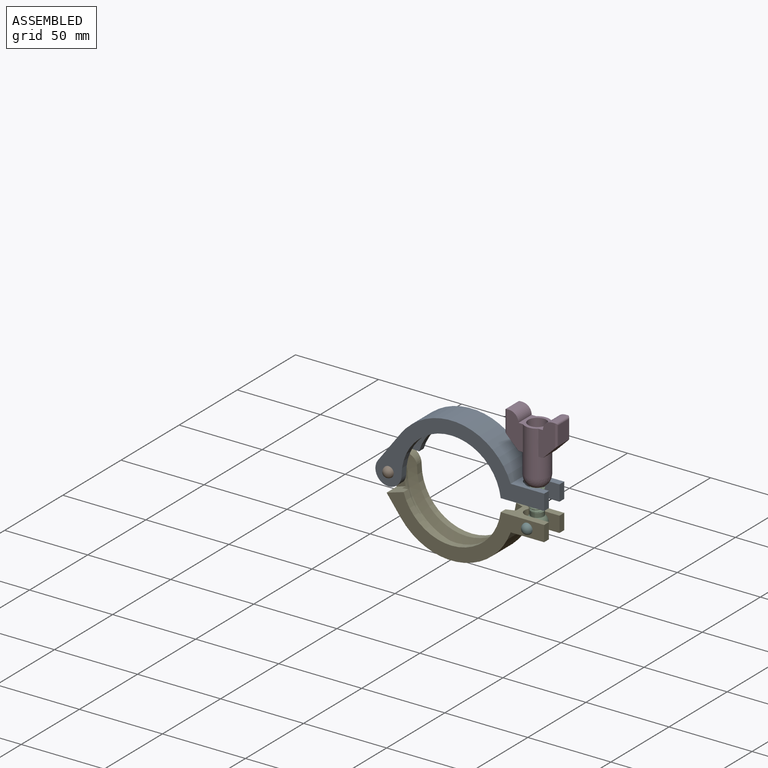
[diagram: assembled view]
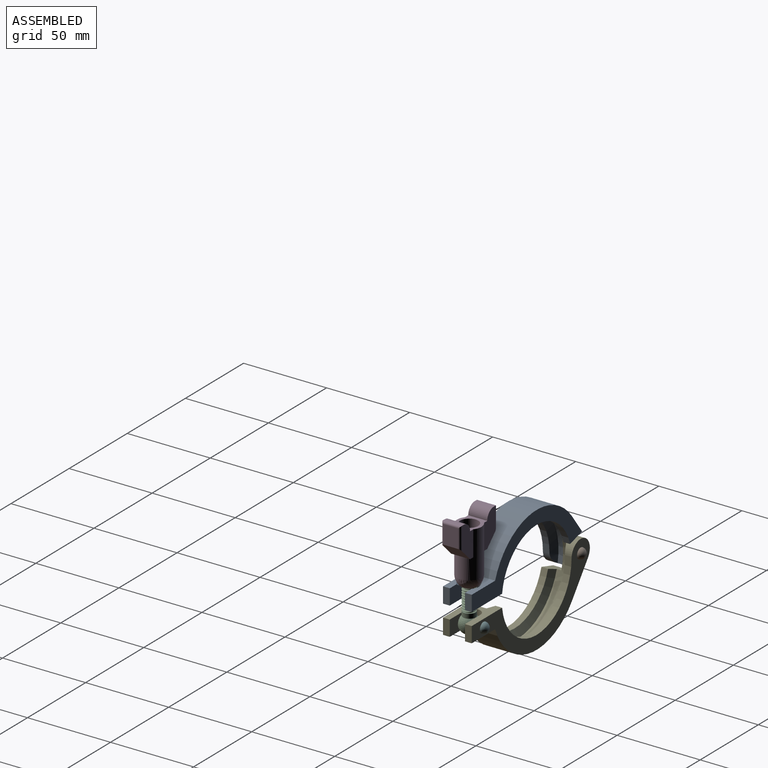
[diagram: assembled view, second angle]
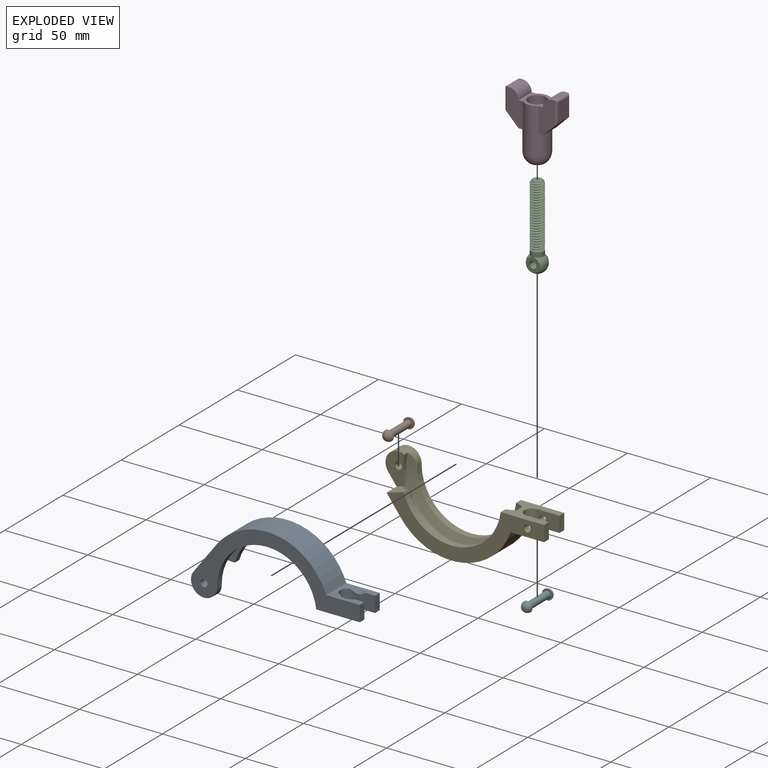
[diagram: exploded view]
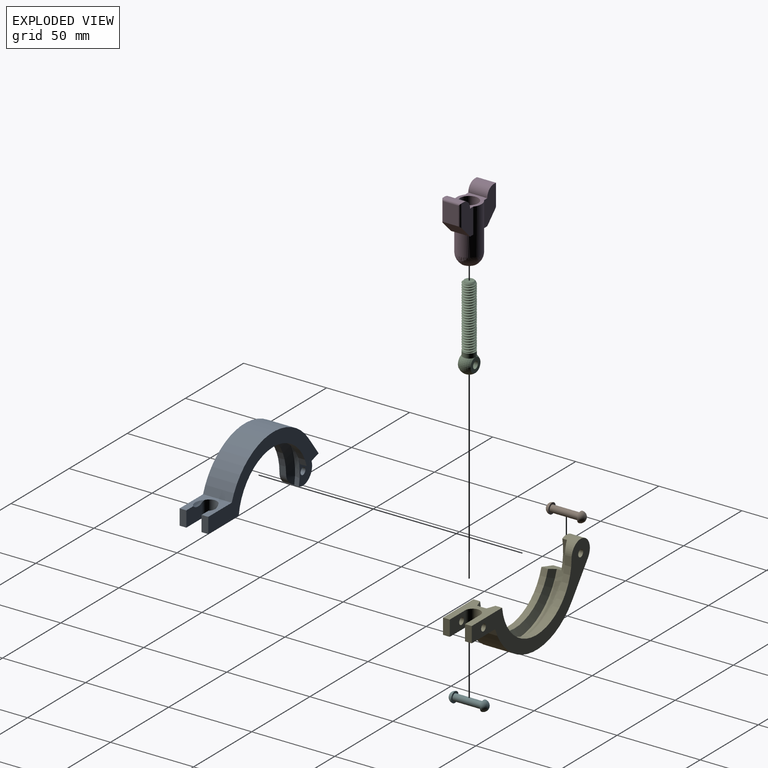
[diagram: exploded view, second angle]
ASSEMBLY  parts=6 mates=5
PART A: 22 faces, bbox 101.6x17.3x46 mm
  f0: cylinder r=2.1mm len=8.64mm, axis (0,1,0), area 113.7mm2, adj f10,f18
  f1: cylinder r=35.06mm len=69.91mm, axis (0,-1,0), area 585.7mm2, adj f3,f6,f9,f11,f18,f19
  f2: plane 94.86x34.29mm, normal (0,1,0), area 947mm2, adj f4,f5,f8,f11,f16,f17,f19
  f3: cone r=29.97mm half-angle=70deg, axis (0,-1,0), area 481.4mm2, adj f1,f4,f11,f19
  f4: cylinder r=29.97mm len=58.46mm, axis (0,-1,0), area 326mm2, adj f2,f3,f11,f19
  f5: plane 18.19x17.27mm, normal (-0.8,0,0.6), area 319.5mm2, adj f2,f6,f8,f10,f18,f19
  f6: cylinder r=7.87mm len=15.75mm, axis (0,1,0), area 225mm2, adj f1,f5,f7,f9,f10,f18
  f7: cylinder r=29.97mm len=59.7mm, axis (0,-1,0), area 360.5mm2, adj f6,f9,f10,f11
  f8: cylinder r=38.1mm len=66.17mm, axis (0,-1,0), area 1409.5mm2, adj f2,f5,f10,f17
  f9: cone r=35.06mm half-angle=70deg, axis (0,1,0), area 559.2mm2, adj f1,f6,f7,f11
  f10: plane 101.6x45.97mm, normal (0,-1,0), area 1173.7mm2, adj f0,f5,f6,f7,f8,f11,f12,f17
  f11: plane 26.2x17.32mm, normal (0,0,-1), area 260mm2, adj f1,f2,f3,f4,f7,f9,f10,f12
  f12: plane 9.4x4.06mm, normal (1,0,0), area 38.2mm2, adj f10,f11,f13,f17
  f13: plane 13.21x9.4mm, normal (0,1,0), area 114.4mm2, adj f11,f12,f14,f17,f21
  f14: cylinder r=4.57mm len=9.4mm, axis (0,0,-1), area 133.3mm2, adj f11,f13,f15,f17,f20,f21
  f15: plane 13.21x9.4mm, normal (0,-1,0), area 114.4mm2, adj f11,f14,f16,f17,f20
  f16: plane 9.4x4.06mm, normal (1,0,0), area 38.2mm2, adj f2,f11,f15,f17
  f17: plane 20.14x17.27mm, normal (0,0,1), area 172.5mm2, adj f2,f8,f10,f12,f13,f14,f15,f16
  f18: plane 19.45x12.11mm, normal (0,1,0), area 153.5mm2, adj f0,f1,f5,f6,f19
  f19: plane 10.25x8.64mm, normal (-0.28,0,-0.96), area 73.4mm2, adj f1,f2,f3,f4,f5,f18
  f20: sphere r=7.94mm, area 15.9mm2, adj f14,f15,f17
  f21: sphere r=7.94mm, area 15.9mm2, adj f13,f14,f17
PART B: 5 faces, bbox 6.4x23.4x6.4 mm
  f0: sphere r=3.18mm, area 60.9mm2, adj f4
  f1: cylinder r=2.03mm len=17.27mm, axis (0,1,0), area 220.5mm2, adj f3,f4
  f2: sphere r=3.18mm, area 60.9mm2, adj f3
  f3: plane 6.35x6.35mm, normal (0,-1,0), area 18.7mm2, adj f1,f2
  f4: plane 6.35x6.35mm, normal (0,1,0), area 18.7mm2, adj f0,f1
PART C: 39 faces, bbox 12x8.3x51.7 mm
  f0: cone r=2.74mm half-angle=45deg, axis (0,0,-1), area 16.9mm2, adj f1,f30,f35,f36,f37,f38
  f1: cone r=2.74mm half-angle=45deg, axis (0,0,-1), area 0mm2, adj f0,f29,f37
  f2: cylinder r=2.1mm len=7.62mm, axis (0,-1,0), area 100.3mm2, adj f33,f34
  f3: cylinder r=3.81mm len=7.62mm, axis (0,0,1), area 66mm2, adj f4,f31,f32,f35,f37
  f4: cylinder r=3.81mm len=7.62mm, axis (0,0,1), area 4.2mm2, adj f3,f5,f35,f37
  f5: cylinder r=3.81mm len=7.62mm, axis (0,0,1), area 4.2mm2, adj f4,f6,f35,f37
  f6: cylinder r=3.81mm len=7.62mm, axis (0,0,1), area 4.2mm2, adj f5,f7,f35,f37
  f7: cylinder r=3.81mm len=7.62mm, axis (0,0,1), area 4.2mm2, adj f6,f8,f35,f37
  f8: cylinder r=3.81mm len=7.62mm, axis (0,0,1), area 4.2mm2, adj f7,f9,f35,f37
  f9: cylinder r=3.81mm len=7.62mm, axis (0,0,1), area 4.2mm2, adj f8,f10,f35,f37
  f10: cylinder r=3.81mm len=7.62mm, axis (0,0,1), area 4.2mm2, adj f9,f11,f35,f37
  f11: cylinder r=3.81mm len=7.62mm, axis (0,0,1), area 4.2mm2, adj f10,f12,f35,f37
  f12: cylinder r=3.81mm len=7.62mm, axis (0,0,1), area 4.2mm2, adj f11,f13,f35,f37
  f13: cylinder r=3.81mm len=7.62mm, axis (0,0,1), area 4.2mm2, adj f12,f14,f35,f37
  f14: cylinder r=3.81mm len=7.62mm, axis (0,0,1), area 4.2mm2, adj f13,f15,f35,f37
  f15: cylinder r=3.81mm len=7.62mm, axis (0,0,1), area 4.2mm2, adj f14,f16,f35,f37
  f16: cylinder r=3.81mm len=7.62mm, axis (0,0,1), area 4.2mm2, adj f15,f17,f35,f37
  f17: cylinder r=3.81mm len=7.62mm, axis (0,0,1), area 4.2mm2, adj f16,f18,f35,f37
  f18: cylinder r=3.81mm len=7.62mm, axis (0,0,1), area 4.2mm2, adj f17,f19,f35,f37
  f19: cylinder r=3.81mm len=7.62mm, axis (0,0,1), area 4.2mm2, adj f18,f20,f35,f37
  f20: cylinder r=3.81mm len=7.62mm, axis (0,0,1), area 4.2mm2, adj f19,f21,f35,f37
  f21: cylinder r=3.81mm len=7.62mm, axis (0,0,1), area 4.2mm2, adj f20,f22,f35,f37
  f22: cylinder r=3.81mm len=7.62mm, axis (0,0,1), area 4.2mm2, adj f21,f23,f35,f37
  f23: cylinder r=3.81mm len=7.62mm, axis (0,0,1), area 4.2mm2, adj f22,f24,f35,f37
  f24: cylinder r=3.81mm len=7.62mm, axis (0,0,1), area 4.2mm2, adj f23,f25,f35,f37
  f25: cylinder r=3.81mm len=7.62mm, axis (0,0,1), area 4.2mm2, adj f24,f26,f35,f37
  f26: cylinder r=3.81mm len=7.62mm, axis (0,0,1), area 4.2mm2, adj f25,f27,f35,f37
  f27: cylinder r=3.81mm len=7.62mm, axis (0,0,1), area 4.2mm2, adj f26,f28,f35,f37
  f28: cylinder r=3.81mm len=7.62mm, axis (0,0,1), area 4.2mm2, adj f27,f29,f35,f37
  f29: cylinder r=3.81mm len=7.62mm, axis (0,0,1), area 4.2mm2, adj f1,f28,f30,f35,f37
  f30: cylinder r=3.81mm len=2.55mm, axis (0,0,1), area 0.2mm2, adj f0,f29,f35
  f31: sphere r=5.71mm, area 221.4mm2, adj f3,f33,f34
  f32: plane 8.17x8.17mm, normal (0,0,1), area 10mm2, adj f3,f35,f36,f37
  f33: plane 8.52x8.52mm, normal (0,-1,0), area 43.2mm2, adj f2,f31
  f34: plane 8.52x8.52mm, normal (0,1,0), area 43.2mm2, adj f2,f31
  f35: bspline ~39.01x7.59mm, area 595.1mm2, adj f0,f3,f4,f5,f6,f7,f8,f9
  f36: cylinder r=2.89mm len=37.95mm, axis (0,0,1), area 85.5mm2, adj f0,f32,f35,f37
  f37: bspline ~38.67x7.77mm, area 618.5mm2, adj f0,f1,f3,f4,f5,f6,f7,f8
  f38: plane 5.48x5.48mm, normal (0,0,1), area 23.6mm2, adj f0
PART D: 29 faces, bbox 31.5x14.7x40.6 mm
  f0: cylinder r=7.37mm len=27.65mm, axis (0,0,-1), area 881.1mm2, adj f3,f4,f8,f11,f12,f15,f16,f17
  f1: cylinder r=5.46mm len=19.05mm, axis (0,0,-1), area 653.7mm2, adj f10,f11
  f2: cylinder r=3.81mm len=14.48mm, axis (0,0,-1), area 346.6mm2, adj f9,f10
  f3: sphere r=7.37mm, area 271.8mm2, adj f0,f9
  f4: plane 5.72x2.72mm, normal (0,0,-1), area 4.7mm2, adj f0,f17,f28
  f5: plane 11.43x1.52mm, normal (0,0,1), area 17.4mm2, adj f17,f21,f26,f27
  f6: plane 11.43x1.52mm, normal (0,0,1), area 17.4mm2, adj f12,f15,f24,f25
  f7: plane 11.18x8.89mm, normal (-1,0,0), area 99.4mm2, adj f13,f14,f23,f24
  f8: plane 5.72x2.72mm, normal (0,0,-1), area 4.7mm2, adj f0,f12,f23
  f9: plane 8.89x8.89mm, normal (0,0,-1), area 16.5mm2, adj f2,f3
  f10: plane 10.92x10.92mm, normal (0,0,1), area 48.1mm2, adj f1,f2
  f11: plane 14.73x14.73mm, normal (0,0,1), area 95.7mm2, adj f0,f1,f12,f15,f17,f21,f25,f27
  f12: plane 20.83x9.83mm, normal (0,-1,0), area 157.6mm2, adj f0,f6,f8,f11,f13,f23,f25
  f13: cylinder r=1.27mm len=13.72mm, axis (0,0,1), area 24.8mm2, adj f7,f12,f23,f24
  f14: cylinder r=1.27mm len=13.72mm, axis (0,0,1), area 24.8mm2, adj f7,f15,f23,f24
  f15: plane 20.83x9.83mm, normal (0,1,0), area 157.6mm2, adj f0,f6,f11,f14,f16,f23,f25
  f16: plane 5.72x2.72mm, normal (0,0,-1), area 4.7mm2, adj f0,f15,f23
  f17: plane 20.83x9.83mm, normal (0,1,0), area 157.6mm2, adj f0,f4,f5,f11,f18,f27,f28
  f18: cylinder r=1.27mm len=13.72mm, axis (0,0,1), area 24.8mm2, adj f17,f19,f26,f28
  f19: plane 11.18x8.89mm, normal (1,0,0), area 99.4mm2, adj f18,f20,f26,f28
  f20: cylinder r=1.27mm len=13.72mm, axis (0,0,1), area 24.8mm2, adj f19,f21,f26,f28
  f21: plane 20.83x9.83mm, normal (0,-1,0), area 157.6mm2, adj f0,f5,f11,f20,f22,f27,f28
  f22: plane 5.72x2.72mm, normal (0,0,-1), area 4.7mm2, adj f0,f21,f28
  f23: plane 11.43x8.38mm, normal (-0.71,0,-0.71), area 134.5mm2, adj f7,f8,f12,f13,f14,f15,f16
  f24: cylinder r=1.27mm len=11.43mm, axis (0,-1,0), area 21mm2, adj f6,f7,f13,f14
  f25: cylinder r=5.59mm len=11.43mm, axis (0,-1,0), area 100.3mm2, adj f6,f11,f12,f15
  f26: cylinder r=1.27mm len=11.43mm, axis (0,-1,0), area 21mm2, adj f5,f18,f19,f20
  f27: cylinder r=5.59mm len=11.43mm, axis (0,-1,0), area 100.3mm2, adj f5,f11,f17,f21
  f28: plane 11.43x8.38mm, normal (0.71,0,-0.71), area 134.5mm2, adj f4,f17,f18,f19,f20,f21,f22
PART E: 22 faces, bbox 101.6x17.3x46 mm
  f0: cylinder r=2.03mm len=4.06mm, axis (0,-1,0), area 51.9mm2, adj f12,f15
  f1: cylinder r=2.03mm len=4.06mm, axis (0,-1,0), area 51.9mm2, adj f4,f17
  f2: cylinder r=2.1mm len=8.64mm, axis (0,-1,0), area 113.7mm2, adj f12,f20
  f3: cylinder r=35.06mm len=69.91mm, axis (0,1,0), area 585.7mm2, adj f5,f8,f11,f13,f20,f21
  f4: plane 94.86x34.29mm, normal (0,-1,0), area 934mm2, adj f1,f6,f7,f10,f13,f18,f19,f21
  f5: cone r=29.97mm half-angle=70deg, axis (0,1,0), area 481.4mm2, adj f3,f6,f13,f21
  f6: cylinder r=29.97mm len=58.46mm, axis (0,1,0), area 326mm2, adj f4,f5,f13,f21
  f7: plane 18.19x17.27mm, normal (-0.8,0,-0.6), area 319.5mm2, adj f4,f8,f10,f12,f20,f21
  f8: cylinder r=7.87mm len=15.75mm, axis (0,-1,0), area 225mm2, adj f3,f7,f9,f11,f12,f20
  f9: cylinder r=29.97mm len=59.7mm, axis (0,1,0), area 360.5mm2, adj f8,f11,f12,f13
  f10: cylinder r=38.1mm len=66.17mm, axis (0,1,0), area 1409.5mm2, adj f4,f7,f12,f19
  f11: cone r=35.06mm half-angle=70deg, axis (0,-1,0), area 559.2mm2, adj f3,f8,f9,f13
  f12: plane 101.6x45.97mm, normal (0,1,0), area 1160.7mm2, adj f0,f2,f7,f8,f9,f10,f13,f14
  f13: plane 26.2x17.32mm, normal (0,0,1), area 260mm2, adj f3,f4,f5,f6,f9,f11,f12,f14
  f14: plane 9.4x4.06mm, normal (1,0,0), area 38.2mm2, adj f12,f13,f15,f19
  f15: plane 13.21x9.4mm, normal (0,-1,0), area 111.2mm2, adj f0,f13,f14,f16,f19
  f16: cylinder r=4.57mm len=9.4mm, axis (0,0,1), area 135mm2, adj f13,f15,f17,f19
  f17: plane 13.21x9.4mm, normal (0,1,0), area 111.2mm2, adj f1,f13,f16,f18,f19
  f18: plane 9.4x4.06mm, normal (1,0,0), area 38.2mm2, adj f4,f13,f17,f19
  f19: plane 20.14x17.27mm, normal (0,0,-1), area 194.3mm2, adj f4,f10,f12,f14,f15,f16,f17,f18
  f20: plane 19.45x12.11mm, normal (0,-1,0), area 153.5mm2, adj f2,f3,f7,f8,f21
  f21: plane 10.25x8.64mm, normal (-0.28,0,0.96), area 73.4mm2, adj f3,f4,f5,f6,f7,f20
PART F: 5 faces, bbox 6.4x23.4x6.4 mm
  f0: sphere r=3.18mm, area 60.9mm2, adj f4
  f1: cylinder r=2.03mm len=17.27mm, axis (0,1,0), area 220.5mm2, adj f3,f4
  f2: sphere r=3.18mm, area 60.9mm2, adj f3
  f3: plane 6.35x6.35mm, normal (0,-1,0), area 18.7mm2, adj f1,f2
  f4: plane 6.35x6.35mm, normal (0,1,0), area 18.7mm2, adj f0,f1
PLACE A t=(-26.9,-25.88,-20.67)mm
PLACE B t=(-26.9,-25.88,-20.67)mm
PLACE C t=(-26.9,-25.88,-20.67)mm
PLACE D t=(-26.9,-25.88,-19.75)mm
PLACE E t=(-26.9,-25.88,-20.67)mm
PLACE F t=(-26.9,-25.88,-20.67)mm
MATE fastened B.f1 <-> E.f2  axis (0,-1,0) through (-64.75,-17.24,-20.67)mm
MATE fastened F.f1 <-> E.f0  axis (0,-1,0) through (18.82,-17.24,-29.18)mm
MATE fastened C.f0 <-> D.f0  axis (0,0,1) through (18.82,-25.88,15.91)mm
MATE fastened E.f0 <-> C.f2  axis (0,-1,0) through (18.82,-21.31,-29.18)mm
MATE fastened B.f1 <-> A.f0  axis (0,1,0) through (-64.75,-34.51,-20.67)mm
